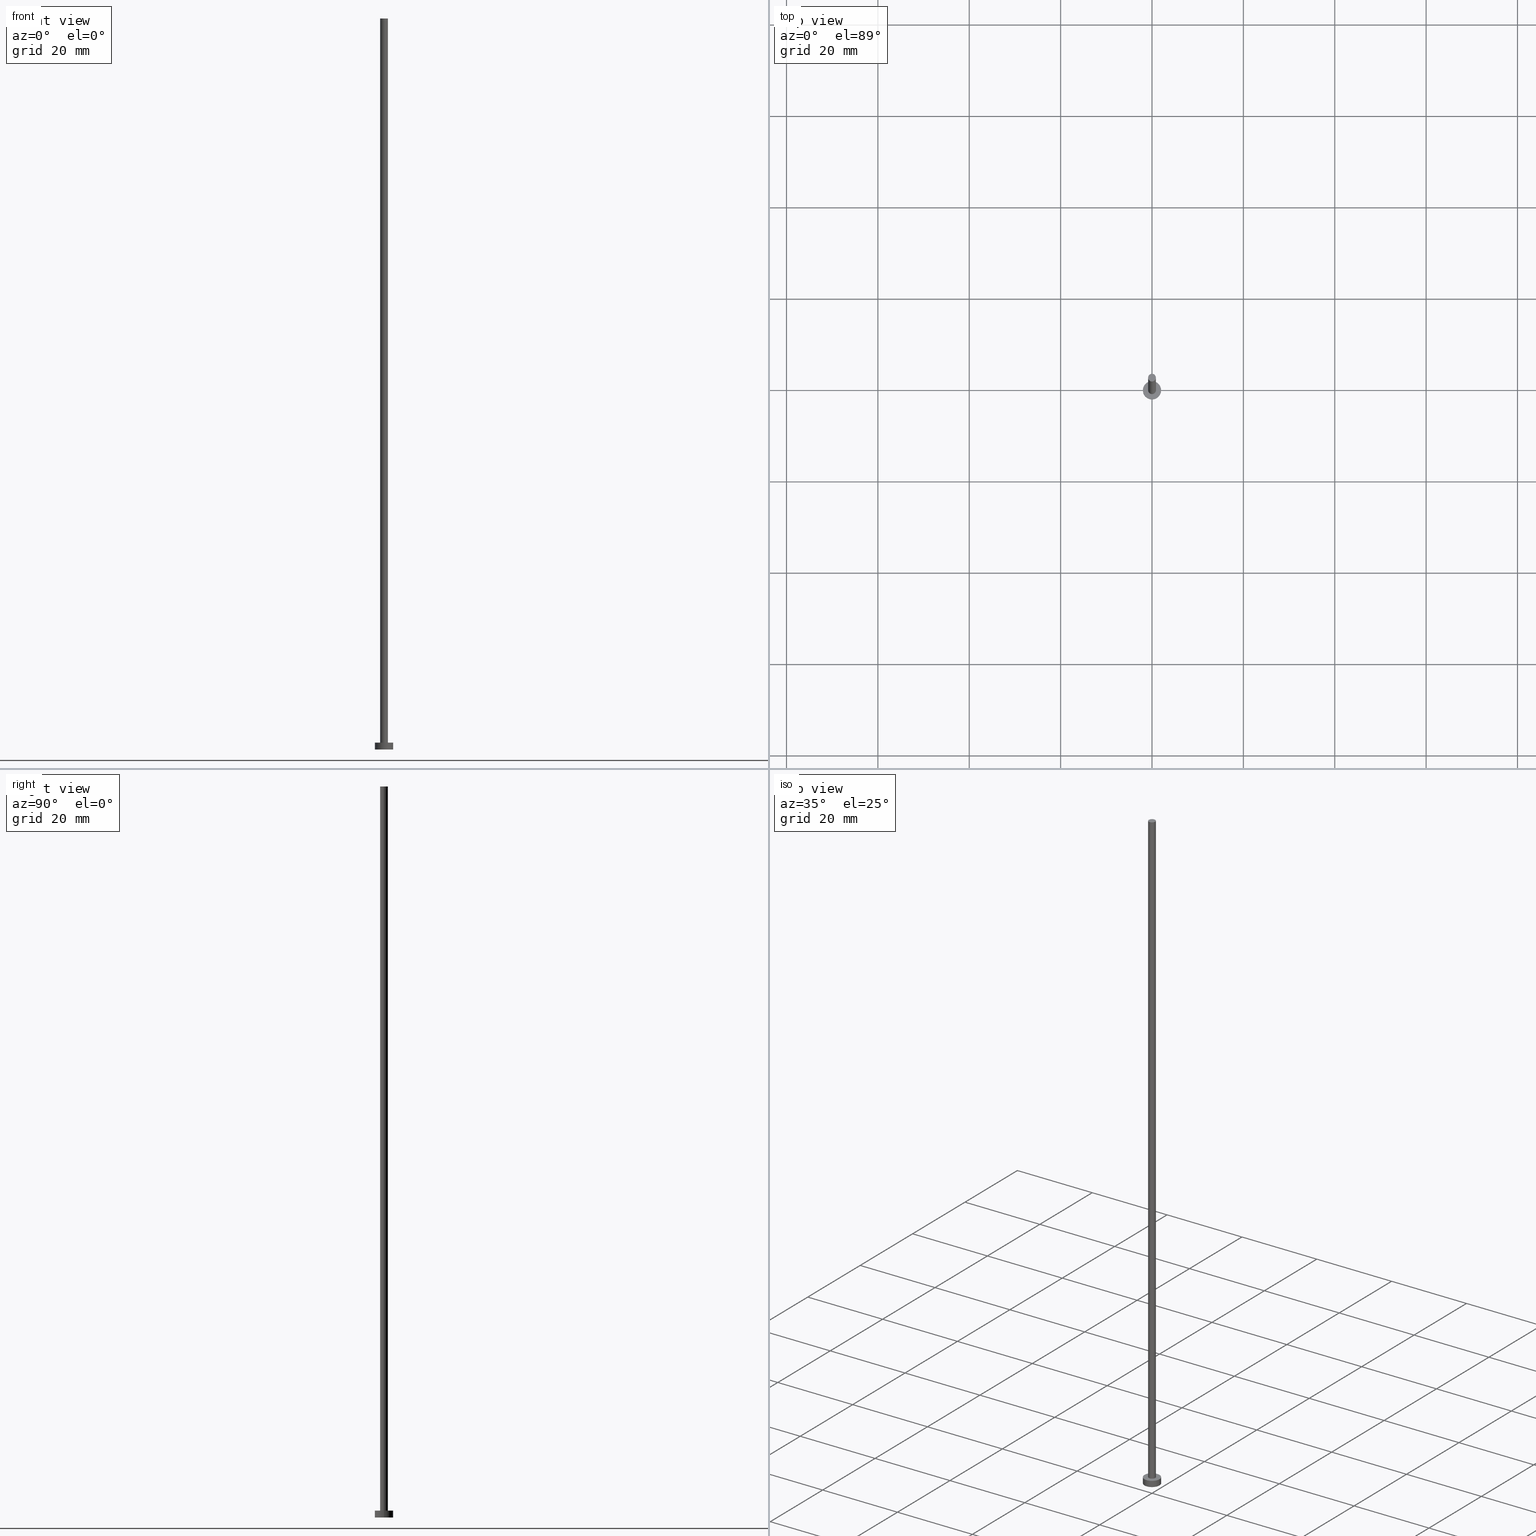
[diagram: canonical four-view strip — front | top / right | iso, engineering-drawing reading convention]
A machine part, canonical four-view strip (front | top / right | iso — engineering-drawing reading convention). The complete STEP part file that produces these views, byte-faithful:
ISO-10303-21;
HEADER;
FILE_DESCRIPTION (( 'STEP AP203' ),
    '1' );
FILE_NAME ('d6ad.STEP',
    '2023-02-12T12:55:04',
    ( '' ),
    ( '' ),
    'SwSTEP 2.0',
    'SolidWorks 2019',
    '' );
FILE_SCHEMA (( 'CONFIG_CONTROL_DESIGN' ));
ENDSEC;

DATA;
#1 = DIRECTION ( 'NONE',  ( 1.000000000000000000, 0.000000000000000000, 0.000000000000000000 ) ) ;
#2 = EDGE_CURVE ( 'NONE', #28, #165, #163, .T. ) ;
#3 = AXIS2_PLACEMENT_3D ( 'NONE', #34, #160, #237 ) ;
#4 = DIRECTION ( 'NONE',  ( 0.000000000000000000, 0.000000000000000000, 1.000000000000000000 ) ) ;
#5 =( NAMED_UNIT ( * ) SI_UNIT ( $, .STERADIAN. ) SOLID_ANGLE_UNIT ( ) );
#6 = ORIENTED_EDGE ( 'NONE', *, *, #114, .T. ) ;
#7 = ADVANCED_FACE ( 'NONE', ( #223 ), #53, .F. ) ;
#8 = CARTESIAN_POINT ( 'NONE',  ( 0.000000000000000000, 0.000000000000000000, 1.500000000000000000 ) ) ;
#9 = AXIS2_PLACEMENT_3D ( 'NONE', #242, #4, #94 ) ;
#10 = APPROVAL_DATE_TIME ( #224, #234 ) ;
#11 = LOCAL_TIME ( 13, 55, 4.000000000000000000, #25 ) ;
#12 = ORIENTED_EDGE ( 'NONE', *, *, #108, .F. ) ;
#13 = ORIENTED_EDGE ( 'NONE', *, *, #191, .F. ) ;
#14 = PERSON_AND_ORGANIZATION ( #112, #102 ) ;
#15 = COORDINATED_UNIVERSAL_TIME_OFFSET ( 1, 0, .AHEAD. ) ;
#16 = ORIENTED_EDGE ( 'NONE', *, *, #236, .T. ) ;
#17 = EDGE_CURVE ( 'NONE', #188, #41, #99, .T. ) ;
#18 = VERTEX_POINT ( 'NONE', #145 ) ;
#19 = CARTESIAN_POINT ( 'NONE',  ( 0.000000000000000000, 0.000000000000000000, 160.0000000000000000 ) ) ;
#20 = APPLICATION_CONTEXT ( 'configuration controlled 3d designs of mechanical parts and assemblies' ) ;
#21 = APPROVAL_PERSON_ORGANIZATION ( #245, #45, #128 ) ;
#22 = CARTESIAN_POINT ( 'NONE',  ( 0.000000000000000000, 0.000000000000000000, 160.0000000000000000 ) ) ;
#23 = DIRECTION ( 'NONE',  ( -1.000000000000000000, 0.000000000000000000, 0.000000000000000000 ) ) ;
#24 = DIRECTION ( 'NONE',  ( 1.000000000000000000, 0.000000000000000000, 0.000000000000000000 ) ) ;
#25 = COORDINATED_UNIVERSAL_TIME_OFFSET ( 1, 0, .AHEAD. ) ;
#26 = CARTESIAN_POINT ( 'NONE',  ( -0.8499999999999999778, 0.000000000000000000, 1.500000000000000000 ) ) ;
#27 = CC_DESIGN_APPROVAL ( #131, ( #62 ) ) ;
#28 = VERTEX_POINT ( 'NONE', #79 ) ;
#29 = PRODUCT_DEFINITION ( 'NEZN�M�', '', #156, #212 ) ;
#30 = PERSON_AND_ORGANIZATION ( #112, #102 ) ;
#31 = AXIS2_PLACEMENT_3D ( 'NONE', #8, #144, #222 ) ;
#32 = DIRECTION ( 'NONE',  ( 0.000000000000000000, 0.000000000000000000, 1.000000000000000000 ) ) ;
#33 = EDGE_CURVE ( 'NONE', #41, #90, #92, .T. ) ;
#34 = CARTESIAN_POINT ( 'NONE',  ( 0.000000000000000000, 0.000000000000000000, 0.000000000000000000 ) ) ;
#35 = FACE_OUTER_BOUND ( 'NONE', #46, .T. ) ;
#36 = CIRCLE ( 'NONE', #115, 0.8499999999999999778 ) ;
#37 = ADVANCED_FACE ( 'NONE', ( #35 ), #152, .T. ) ;
#38 = CIRCLE ( 'NONE', #240, 2.000000000000000000 ) ;
#39 = EDGE_LOOP ( 'NONE', ( #197, #187 ) ) ;
#40 = DIRECTION ( 'NONE',  ( 1.000000000000000000, 0.000000000000000000, 0.000000000000000000 ) ) ;
#41 = VERTEX_POINT ( 'NONE', #241 ) ;
#42 = PLANE ( 'NONE',  #235 ) ;
#43 = LOCAL_TIME ( 13, 55, 4.000000000000000000, #15 ) ;
#44 = DIRECTION ( 'NONE',  ( 0.000000000000000000, 0.000000000000000000, 1.000000000000000000 ) ) ;
#45 = APPROVAL ( #248, 'NEUR�EN�' ) ;
#46 = EDGE_LOOP ( 'NONE', ( #155, #64, #59, #251 ) ) ;
#47 = DIRECTION ( 'NONE',  ( -0.000000000000000000, -0.000000000000000000, -1.000000000000000000 ) ) ;
#48 = LINE ( 'NONE', #71, #85 ) ;
#49 = APPROVAL_PERSON_ORGANIZATION ( #14, #234, #60 ) ;
#50 = EDGE_LOOP ( 'NONE', ( #13, #151, #203, #141 ) ) ;
#51 = PERSON_AND_ORGANIZATION_ROLE ( 'design_supplier' ) ;
#52 = DIRECTION ( 'NONE',  ( 0.000000000000000000, 0.000000000000000000, 1.000000000000000000 ) ) ;
#53 = PLANE ( 'NONE',  #9 ) ;
#54 = MANIFOLD_SOLID_BREP ( 'P�idat vysunut�m3', #65 ) ;
#55 = DATE_TIME_ROLE ( 'creation_date' ) ;
#56 = EDGE_LOOP ( 'NONE', ( #217, #12, #81, #177 ) ) ;
#57 = AXIS2_PLACEMENT_3D ( 'NONE', #253, #100, #24 ) ;
#58 = APPROVAL_DATE_TIME ( #228, #45 ) ;
#59 = ORIENTED_EDGE ( 'NONE', *, *, #78, .T. ) ;
#60 = APPROVAL_ROLE ( '' ) ;
#61 = PERSON_AND_ORGANIZATION ( #112, #102 ) ;
#62 = SECURITY_CLASSIFICATION ( '', '', #221 ) ;
#63 = CARTESIAN_POINT ( 'NONE',  ( 0.000000000000000000, 0.000000000000000000, 1.500000000000000000 ) ) ;
#64 = ORIENTED_EDGE ( 'NONE', *, *, #181, .T. ) ;
#65 = CLOSED_SHELL ( 'NONE', ( #37, #143, #200, #67, #7, #82, #117 ) ) ;
#66 = LOCAL_TIME ( 13, 55, 4.000000000000000000, #119 ) ;
#67 = ADVANCED_FACE ( 'NONE', ( #232, #121 ), #202, .T. ) ;
#68 = ORIENTED_EDGE ( 'NONE', *, *, #191, .T. ) ;
#69 = PRODUCT_DEFINITION_SHAPE ( 'NONE', 'NONE',  #29 ) ;
#70 = CIRCLE ( 'NONE', #3, 2.000000000000000000 ) ;
#71 = CARTESIAN_POINT ( 'NONE',  ( -2.000000000000000000, 0.000000000000000000, 1.500000000000000000 ) ) ;
#72 = PERSON_AND_ORGANIZATION_ROLE ( 'classification_officer' ) ;
#73 = CARTESIAN_POINT ( 'NONE',  ( 0.8499999999999999778, 1.040949779275250140E-16, 160.0000000000000000 ) ) ;
#74 = PRODUCT ( 'd6ad', 'd6ad', '', ( #170 ) ) ;
#75 = ORIENTED_EDGE ( 'NONE', *, *, #236, .F. ) ;
#76 = APPLICATION_PROTOCOL_DEFINITION ( 'international standard', 'config_control_design', 1994, #20 ) ;
#77 = CARTESIAN_POINT ( 'NONE',  ( 0.000000000000000000, 0.000000000000000000, 1.500000000000000000 ) ) ;
#78 = EDGE_CURVE ( 'NONE', #98, #90, #227, .T. ) ;
#79 = CARTESIAN_POINT ( 'NONE',  ( -2.000000000000000000, 0.000000000000000000, 1.500000000000000000 ) ) ;
#80 = EDGE_CURVE ( 'NONE', #90, #98, #36, .T. ) ;
#81 = ORIENTED_EDGE ( 'NONE', *, *, #33, .T. ) ;
#82 = ADVANCED_FACE ( 'NONE', ( #210 ), #193, .T. ) ;
#83 = VERTEX_POINT ( 'NONE', #134 ) ;
#84 = PERSON_AND_ORGANIZATION ( #112, #102 ) ;
#85 = VECTOR ( 'NONE', #47, 1000.000000000000000 ) ;
#86 = DIRECTION ( 'NONE',  ( 0.000000000000000000, 0.000000000000000000, 1.000000000000000000 ) ) ;
#87 = DATE_AND_TIME ( #105, #11 ) ;
#88 = PERSON_AND_ORGANIZATION ( #112, #102 ) ;
#89 = PERSON_AND_ORGANIZATION ( #112, #102 ) ;
#90 = VERTEX_POINT ( 'NONE', #26 ) ;
#91 = ORIENTED_EDGE ( 'NONE', *, *, #108, .T. ) ;
#92 = LINE ( 'NONE', #109, #250 ) ;
#93 = CARTESIAN_POINT ( 'NONE',  ( 0.000000000000000000, 0.000000000000000000, 0.000000000000000000 ) ) ;
#94 = DIRECTION ( 'NONE',  ( 1.000000000000000000, 0.000000000000000000, -0.000000000000000000 ) ) ;
#95 = DIRECTION ( 'NONE',  ( 0.000000000000000000, 0.000000000000000000, 1.000000000000000000 ) ) ;
#96 = VECTOR ( 'NONE', #139, 1000.000000000000000 ) ;
#97 = CARTESIAN_POINT ( 'NONE',  ( 0.000000000000000000, 0.000000000000000000, 160.0000000000000000 ) ) ;
#98 = VERTEX_POINT ( 'NONE', #252 ) ;
#99 = CIRCLE ( 'NONE', #137, 0.8499999999999999778 ) ;
#100 = DIRECTION ( 'NONE',  ( 0.000000000000000000, 0.000000000000000000, 1.000000000000000000 ) ) ;
#101 = DIRECTION ( 'NONE',  ( -0.000000000000000000, -0.000000000000000000, -1.000000000000000000 ) ) ;
#102 = ORGANIZATION ( 'NEUR�EN�', 'NEUR�EN�', '' ) ;
#103 =( NAMED_UNIT ( * ) PLANE_ANGLE_UNIT ( ) SI_UNIT ( $, .RADIAN. ) );
#104 = DIRECTION ( 'NONE',  ( 1.000000000000000000, 0.000000000000000000, -0.000000000000000000 ) ) ;
#105 = CALENDAR_DATE ( 2023, 12, 2 ) ;
#106 =( LENGTH_UNIT ( ) NAMED_UNIT ( * ) SI_UNIT ( .MILLI., .METRE. ) );
#107 = DIRECTION ( 'NONE',  ( 1.000000000000000000, 0.000000000000000000, 0.000000000000000000 ) ) ;
#108 = EDGE_CURVE ( 'NONE', #41, #188, #142, .T. ) ;
#109 = CARTESIAN_POINT ( 'NONE',  ( -0.8499999999999999778, 0.000000000000000000, 160.0000000000000000 ) ) ;
#110 = AXIS2_PLACEMENT_3D ( 'NONE', #162, #86, #161 ) ;
#111 = COORDINATED_UNIVERSAL_TIME_OFFSET ( 1, 0, .AHEAD. ) ;
#112 = PERSON ( 'NEUR�EN�', 'NEUR�EN�', 'NEUR�EN�', ('NEUR�EN�'), ('NEUR�EN�'), ('NEUR�EN�') ) ;
#113 = DIRECTION ( 'NONE',  ( 1.000000000000000000, 0.000000000000000000, -0.000000000000000000 ) ) ;
#114 = EDGE_CURVE ( 'NONE', #83, #18, #184, .T. ) ;
#115 = AXIS2_PLACEMENT_3D ( 'NONE', #123, #44, #1 ) ;
#116 = DIRECTION ( 'NONE',  ( -1.000000000000000000, 0.000000000000000000, 0.000000000000000000 ) ) ;
#117 = ADVANCED_FACE ( 'NONE', ( #254 ), #42, .T. ) ;
#118 = AXIS2_PLACEMENT_3D ( 'NONE', #22, #195, #23 ) ;
#119 = COORDINATED_UNIVERSAL_TIME_OFFSET ( 1, 0, .AHEAD. ) ;
#120 = CARTESIAN_POINT ( 'NONE',  ( 0.000000000000000000, 0.000000000000000000, 1.500000000000000000 ) ) ;
#121 = FACE_OUTER_BOUND ( 'NONE', #132, .T. ) ;
#122 = AXIS2_PLACEMENT_3D ( 'NONE', #93, #209, #189 ) ;
#123 = CARTESIAN_POINT ( 'NONE',  ( 0.000000000000000000, 0.000000000000000000, 1.500000000000000000 ) ) ;
#124 = CALENDAR_DATE ( 2023, 12, 2 ) ;
#125 = FACE_OUTER_BOUND ( 'NONE', #50, .T. ) ;
#126 = DIRECTION ( 'NONE',  ( -0.000000000000000000, -0.000000000000000000, -1.000000000000000000 ) ) ;
#127 = PERSON_AND_ORGANIZATION_ROLE ( 'creator' ) ;
#128 = APPROVAL_ROLE ( '' ) ;
#129 = CARTESIAN_POINT ( 'NONE',  ( 0.000000000000000000, 0.000000000000000000, 1.500000000000000000 ) ) ;
#130 = DIRECTION ( 'NONE',  ( -1.000000000000000000, 0.000000000000000000, 0.000000000000000000 ) ) ;
#131 = APPROVAL ( #135, 'NEUR�EN�' ) ;
#132 = EDGE_LOOP ( 'NONE', ( #179, #16 ) ) ;
#133 = AXIS2_PLACEMENT_3D ( 'NONE', #97, #175, #40 ) ;
#134 = CARTESIAN_POINT ( 'NONE',  ( 2.000000000000000000, 2.449293598294706414E-16, 0.000000000000000000 ) ) ;
#135 = APPROVAL_STATUS ( 'not_yet_approved' ) ;
#136 = ORIENTED_EDGE ( 'NONE', *, *, #246, .F. ) ;
#137 = AXIS2_PLACEMENT_3D ( 'NONE', #171, #150, #249 ) ;
#138 = DATE_AND_TIME ( #124, #66 ) ;
#139 = DIRECTION ( 'NONE',  ( -0.000000000000000000, -0.000000000000000000, -1.000000000000000000 ) ) ;
#140 = APPROVAL_ROLE ( '' ) ;
#141 = ORIENTED_EDGE ( 'NONE', *, *, #246, .T. ) ;
#142 = CIRCLE ( 'NONE', #133, 0.8499999999999999778 ) ;
#143 = ADVANCED_FACE ( 'NONE', ( #173 ), #233, .T. ) ;
#144 = DIRECTION ( 'NONE',  ( -0.000000000000000000, -0.000000000000000000, -1.000000000000000000 ) ) ;
#145 = CARTESIAN_POINT ( 'NONE',  ( -2.000000000000000000, 0.000000000000000000, 0.000000000000000000 ) ) ;
#146 = APPROVAL_STATUS ( 'not_yet_approved' ) ;
#147 = CC_DESIGN_PERSON_AND_ORGANIZATION_ASSIGNMENT ( #159, #51, ( #156 ) ) ;
#148 = LOCAL_TIME ( 13, 55, 4.000000000000000000, #111 ) ;
#149 = EDGE_LOOP ( 'NONE', ( #91, #172 ) ) ;
#150 = DIRECTION ( 'NONE',  ( 0.000000000000000000, 0.000000000000000000, 1.000000000000000000 ) ) ;
#151 = ORIENTED_EDGE ( 'NONE', *, *, #2, .F. ) ;
#152 = CYLINDRICAL_SURFACE ( 'NONE', #192, 0.8499999999999999778 ) ;
#153 = DIRECTION ( 'NONE',  ( -0.000000000000000000, -0.000000000000000000, -1.000000000000000000 ) ) ;
#154 = PRODUCT_RELATED_PRODUCT_CATEGORY ( 'detail', '', ( #74 ) ) ;
#155 = ORIENTED_EDGE ( 'NONE', *, *, #17, .F. ) ;
#156 = PRODUCT_DEFINITION_FORMATION_WITH_SPECIFIED_SOURCE ( 'LIBOVOLN�', '', #74, .NOT_KNOWN. ) ;
#157 = CARTESIAN_POINT ( 'NONE',  ( 0.8499999999999999778, 1.040949779275250140E-16, 160.0000000000000000 ) ) ;
#158 = AXIS2_PLACEMENT_3D ( 'NONE', #129, #32, #104 ) ;
#159 = PERSON_AND_ORGANIZATION ( #112, #102 ) ;
#160 = DIRECTION ( 'NONE',  ( 0.000000000000000000, 0.000000000000000000, 1.000000000000000000 ) ) ;
#161 = DIRECTION ( 'NONE',  ( 1.000000000000000000, 0.000000000000000000, 0.000000000000000000 ) ) ;
#162 = CARTESIAN_POINT ( 'NONE',  ( 0.000000000000000000, 0.000000000000000000, 1.500000000000000000 ) ) ;
#163 = CIRCLE ( 'NONE', #110, 2.000000000000000000 ) ;
#164 = PERSON_AND_ORGANIZATION_ROLE ( 'design_owner' ) ;
#165 = VERTEX_POINT ( 'NONE', #194 ) ;
#166 = APPLICATION_CONTEXT ( 'configuration controlled 3d designs of mechanical parts and assemblies' ) ;
#167 = EDGE_CURVE ( 'NONE', #28, #18, #48, .T. ) ;
#168 = CALENDAR_DATE ( 2023, 12, 2 ) ;
#169 = DIRECTION ( 'NONE',  ( -0.000000000000000000, -0.000000000000000000, -1.000000000000000000 ) ) ;
#170 = MECHANICAL_CONTEXT ( 'NONE', #166, 'mechanical' ) ;
#171 = CARTESIAN_POINT ( 'NONE',  ( 0.000000000000000000, 0.000000000000000000, 160.0000000000000000 ) ) ;
#172 = ORIENTED_EDGE ( 'NONE', *, *, #17, .T. ) ;
#173 = FACE_OUTER_BOUND ( 'NONE', #186, .T. ) ;
#174 = VECTOR ( 'NONE', #101, 1000.000000000000000 ) ;
#175 = DIRECTION ( 'NONE',  ( 0.000000000000000000, 0.000000000000000000, 1.000000000000000000 ) ) ;
#176 = UNCERTAINTY_MEASURE_WITH_UNIT (LENGTH_MEASURE( 1.000000000000000082E-05 ), #106, 'distance_accuracy_value', 'NONE');
#177 = ORIENTED_EDGE ( 'NONE', *, *, #80, .T. ) ;
#178 =( GEOMETRIC_REPRESENTATION_CONTEXT ( 3 ) GLOBAL_UNCERTAINTY_ASSIGNED_CONTEXT ( ( #176 ) ) GLOBAL_UNIT_ASSIGNED_CONTEXT ( ( #106, #103, #5 ) ) REPRESENTATION_CONTEXT ( 'NONE', 'WORKASPACE' ) );
#179 = ORIENTED_EDGE ( 'NONE', *, *, #2, .T. ) ;
#180 = SHAPE_DEFINITION_REPRESENTATION ( #69, #226 ) ;
#181 = EDGE_CURVE ( 'NONE', #188, #98, #196, .T. ) ;
#182 = PERSON_AND_ORGANIZATION_ROLE ( 'creator' ) ;
#183 = APPLICATION_PROTOCOL_DEFINITION ( 'international standard', 'config_control_design', 1994, #166 ) ;
#184 = CIRCLE ( 'NONE', #57, 2.000000000000000000 ) ;
#185 = CC_DESIGN_SECURITY_CLASSIFICATION ( #62, ( #156 ) ) ;
#186 = EDGE_LOOP ( 'NONE', ( #75, #68, #6, #213 ) ) ;
#187 = ORIENTED_EDGE ( 'NONE', *, *, #78, .F. ) ;
#188 = VERTEX_POINT ( 'NONE', #73 ) ;
#189 = DIRECTION ( 'NONE',  ( 1.000000000000000000, 0.000000000000000000, 0.000000000000000000 ) ) ;
#190 = CC_DESIGN_DATE_AND_TIME_ASSIGNMENT ( #207, #55, ( #29 ) ) ;
#191 = EDGE_CURVE ( 'NONE', #165, #83, #238, .T. ) ;
#192 = AXIS2_PLACEMENT_3D ( 'NONE', #230, #169, #130 ) ;
#193 = CYLINDRICAL_SURFACE ( 'NONE', #118, 0.8499999999999999778 ) ;
#194 = CARTESIAN_POINT ( 'NONE',  ( 2.000000000000000000, 2.449293598294706414E-16, 1.500000000000000000 ) ) ;
#195 = DIRECTION ( 'NONE',  ( -0.000000000000000000, -0.000000000000000000, -1.000000000000000000 ) ) ;
#196 = LINE ( 'NONE', #157, #174 ) ;
#197 = ORIENTED_EDGE ( 'NONE', *, *, #80, .F. ) ;
#198 = CYLINDRICAL_SURFACE ( 'NONE', #31, 2.000000000000000000 ) ;
#199 = DATE_TIME_ROLE ( 'classification_date' ) ;
#200 = ADVANCED_FACE ( 'NONE', ( #125 ), #198, .T. ) ;
#201 = CARTESIAN_POINT ( 'NONE',  ( 2.000000000000000000, 2.449293598294706414E-16, 1.500000000000000000 ) ) ;
#202 = PLANE ( 'NONE',  #158 ) ;
#203 = ORIENTED_EDGE ( 'NONE', *, *, #167, .T. ) ;
#204 = CALENDAR_DATE ( 2023, 12, 2 ) ;
#205 = CC_DESIGN_PERSON_AND_ORGANIZATION_ASSIGNMENT ( #88, #182, ( #156 ) ) ;
#206 = EDGE_LOOP ( 'NONE', ( #136, #244 ) ) ;
#207 = DATE_AND_TIME ( #204, #43 ) ;
#208 = COORDINATED_UNIVERSAL_TIME_OFFSET ( 1, 0, .AHEAD. ) ;
#209 = DIRECTION ( 'NONE',  ( 0.000000000000000000, 0.000000000000000000, 1.000000000000000000 ) ) ;
#210 = FACE_OUTER_BOUND ( 'NONE', #56, .T. ) ;
#211 = CC_DESIGN_PERSON_AND_ORGANIZATION_ASSIGNMENT ( #61, #127, ( #29 ) ) ;
#212 = DESIGN_CONTEXT ( 'detailed design', #20, 'design' ) ;
#213 = ORIENTED_EDGE ( 'NONE', *, *, #167, .F. ) ;
#214 = AXIS2_PLACEMENT_3D ( 'NONE', #63, #153, #116 ) ;
#215 = APPROVAL_PERSON_ORGANIZATION ( #30, #131, #140 ) ;
#216 = CC_DESIGN_PERSON_AND_ORGANIZATION_ASSIGNMENT ( #84, #72, ( #62 ) ) ;
#217 = ORIENTED_EDGE ( 'NONE', *, *, #181, .F. ) ;
#218 = APPROVAL_DATE_TIME ( #87, #131 ) ;
#219 = LOCAL_TIME ( 13, 55, 4.000000000000000000, #208 ) ;
#220 = DIRECTION ( 'NONE',  ( 1.000000000000000000, 0.000000000000000000, 0.000000000000000000 ) ) ;
#221 = SECURITY_CLASSIFICATION_LEVEL ( 'unclassified' ) ;
#222 = DIRECTION ( 'NONE',  ( -1.000000000000000000, 0.000000000000000000, 0.000000000000000000 ) ) ;
#223 = FACE_OUTER_BOUND ( 'NONE', #206, .T. ) ;
#224 = DATE_AND_TIME ( #243, #219 ) ;
#225 = CC_DESIGN_DATE_AND_TIME_ASSIGNMENT ( #138, #199, ( #62 ) ) ;
#226 = ADVANCED_BREP_SHAPE_REPRESENTATION ( 'd6ad', ( #54, #122 ), #178 ) ;
#227 = CIRCLE ( 'NONE', #231, 0.8499999999999999778 ) ;
#228 = DATE_AND_TIME ( #168, #148 ) ;
#229 = DIRECTION ( 'NONE',  ( 0.000000000000000000, 0.000000000000000000, 1.000000000000000000 ) ) ;
#230 = CARTESIAN_POINT ( 'NONE',  ( 0.000000000000000000, 0.000000000000000000, 160.0000000000000000 ) ) ;
#231 = AXIS2_PLACEMENT_3D ( 'NONE', #77, #229, #220 ) ;
#232 = FACE_BOUND ( 'NONE', #39, .T. ) ;
#233 = CYLINDRICAL_SURFACE ( 'NONE', #214, 2.000000000000000000 ) ;
#234 = APPROVAL ( #146, 'NEUR�EN�' ) ;
#235 = AXIS2_PLACEMENT_3D ( 'NONE', #19, #95, #113 ) ;
#236 = EDGE_CURVE ( 'NONE', #165, #28, #38, .T. ) ;
#237 = DIRECTION ( 'NONE',  ( 1.000000000000000000, 0.000000000000000000, 0.000000000000000000 ) ) ;
#238 = LINE ( 'NONE', #201, #96 ) ;
#239 = CC_DESIGN_PERSON_AND_ORGANIZATION_ASSIGNMENT ( #89, #164, ( #74 ) ) ;
#240 = AXIS2_PLACEMENT_3D ( 'NONE', #120, #52, #107 ) ;
#241 = CARTESIAN_POINT ( 'NONE',  ( -0.8499999999999999778, 0.000000000000000000, 160.0000000000000000 ) ) ;
#242 = CARTESIAN_POINT ( 'NONE',  ( 0.000000000000000000, 0.000000000000000000, 0.000000000000000000 ) ) ;
#243 = CALENDAR_DATE ( 2023, 12, 2 ) ;
#244 = ORIENTED_EDGE ( 'NONE', *, *, #114, .F. ) ;
#245 = PERSON_AND_ORGANIZATION ( #112, #102 ) ;
#246 = EDGE_CURVE ( 'NONE', #18, #83, #70, .T. ) ;
#247 = CC_DESIGN_APPROVAL ( #45, ( #29 ) ) ;
#248 = APPROVAL_STATUS ( 'not_yet_approved' ) ;
#249 = DIRECTION ( 'NONE',  ( 1.000000000000000000, 0.000000000000000000, 0.000000000000000000 ) ) ;
#250 = VECTOR ( 'NONE', #126, 1000.000000000000000 ) ;
#251 = ORIENTED_EDGE ( 'NONE', *, *, #33, .F. ) ;
#252 = CARTESIAN_POINT ( 'NONE',  ( 0.8499999999999999778, 1.040949779275250140E-16, 1.500000000000000000 ) ) ;
#253 = CARTESIAN_POINT ( 'NONE',  ( 0.000000000000000000, 0.000000000000000000, 0.000000000000000000 ) ) ;
#254 = FACE_OUTER_BOUND ( 'NONE', #149, .T. ) ;
#255 = CC_DESIGN_APPROVAL ( #234, ( #156 ) ) ;
ENDSEC;
END-ISO-10303-21;
